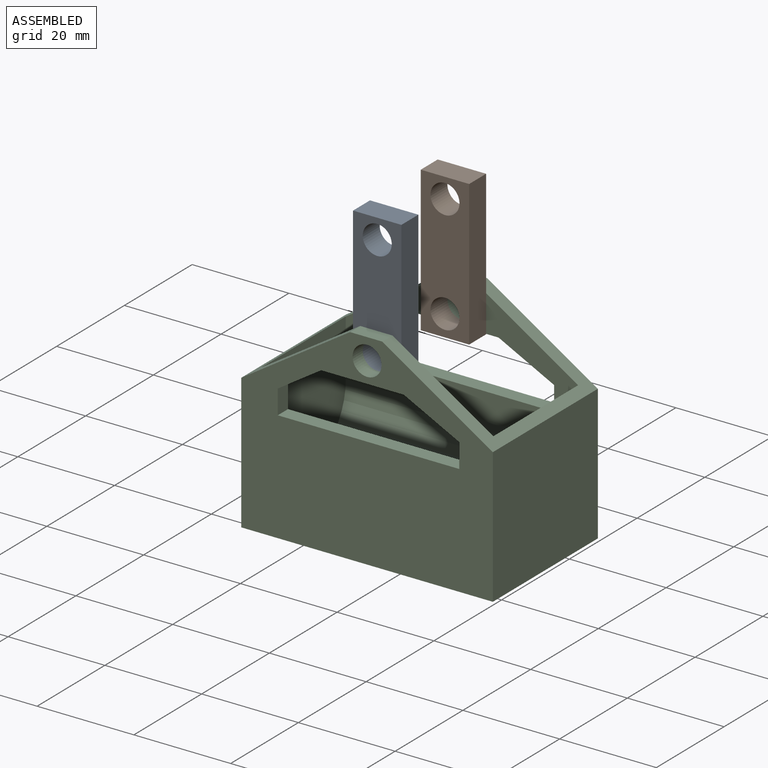
[diagram: assembled view]
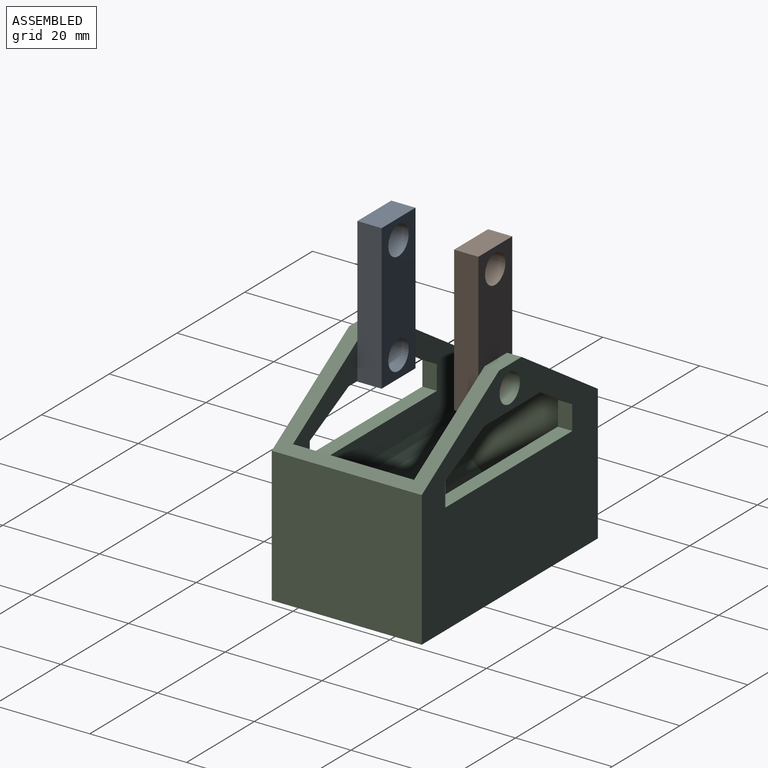
[diagram: assembled view, second angle]
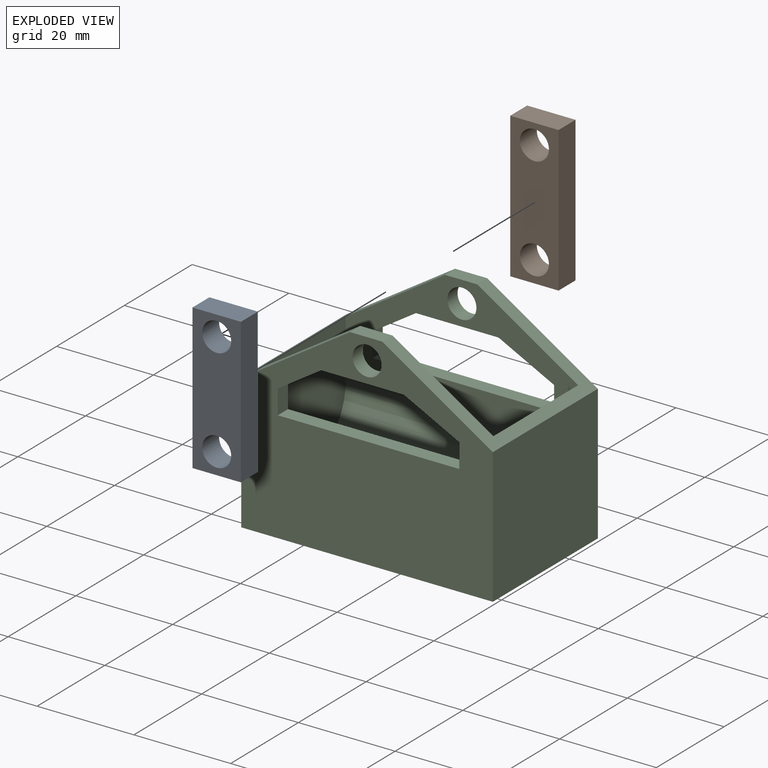
[diagram: exploded view]
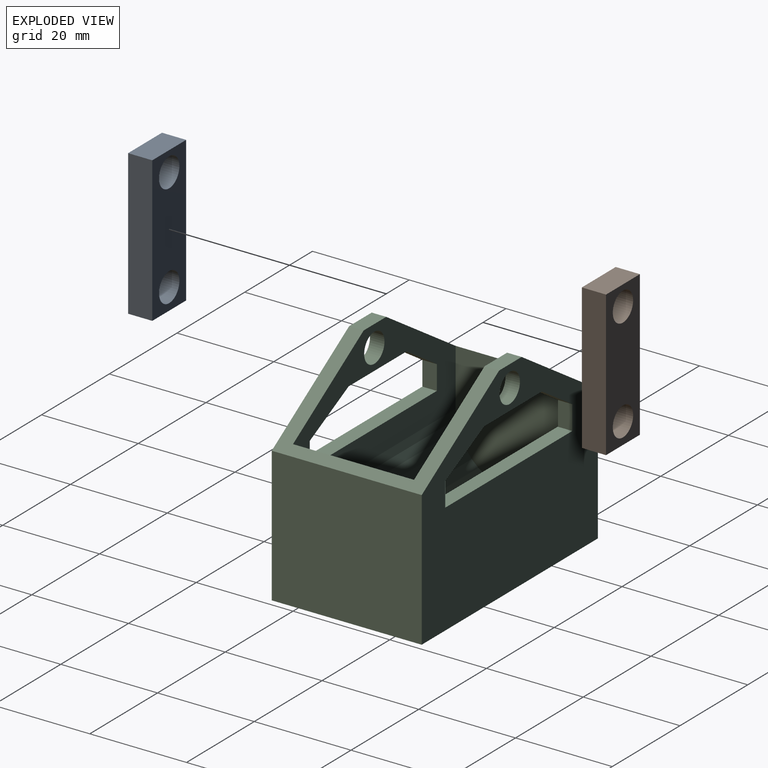
[diagram: exploded view, second angle]
ASSEMBLY  parts=3 mates=2
PART A: 8 faces, bbox 30x10x5 mm
  f0: plane 30x5mm, normal (0,1,0), area 150mm2, adj f1,f5,f6,f7
  f1: plane 10x5mm, normal (-1,0,0), area 50mm2, adj f0,f2,f6,f7
  f2: plane 30x5mm, normal (0,-1,0), area 150mm2, adj f1,f5,f6,f7
  f3: cylinder r=3mm len=6mm, axis (0,0,-1), area 94.2mm2, adj f6,f7
  f4: cylinder r=3mm len=6mm, axis (0,0,-1), area 94.2mm2, adj f6,f7
  f5: plane 10x5mm, normal (1,0,0), area 50mm2, adj f0,f2,f6,f7
  f6: plane 30x10mm, normal (0,0,1), area 243.5mm2, adj f0,f1,f2,f3,f4,f5
  f7: plane 30x10mm, normal (0,0,-1), area 243.5mm2, adj f0,f1,f2,f3,f4,f5
PART B: same geometry as A
PART C: 28 faces, bbox 42.5x31x52 mm
  f0: plane 48x25mm, normal (0,-1,0), area 551.9mm2, adj f5,f6,f8,f9,f10,f11,f13,f14
  f1: plane 48x25mm, normal (0,1,0), area 551.9mm2, adj f5,f6,f12,f14,f15,f16,f17,f18
  f2: plane 52x42.5mm, normal (0,1,0), area 1506.3mm2, adj f3,f4,f5,f6,f7,f8,f9,f10
  f3: plane 31x27.96mm, normal (0,0,-1), area 866.6mm2, adj f2,f5,f7,f21
  f4: plane 31x27.96mm, normal (0,0,1), area 866.6mm2, adj f2,f6,f7,f21
  f5: plane 31x22.85mm, normal (0.84,0,-0.54), area 221.8mm2, adj f0,f1,f2,f3,f12,f13,f16,f21
  f6: plane 31x22.5mm, normal (0.84,0,0.54), area 220.3mm2, adj f0,f1,f2,f4,f12,f13,f15,f21
  f7: plane 52x31mm, normal (-1,0,0), area 1612mm2, adj f2,f3,f4,f21
  f8: plane 8.96x5.79mm, normal (-0.84,0,-0.54), area 32mm2, adj f0,f2,f9,f26
  f9: plane 17.08x3mm, normal (-1,0,0), area 51.2mm2, adj f0,f2,f8,f10
  f10: plane 11.47x5.79mm, normal (-0.89,0,0.45), area 38.5mm2, adj f0,f2,f9,f25
  f11: cylinder r=3mm len=6mm, axis (0,1,0), area 56.5mm2, adj f0,f2
  f12: plane 6.65x3mm, normal (1,0,0), area 19.9mm2, adj f1,f5,f6,f21
  f13: plane 6.65x3mm, normal (1,0,0), area 19.9mm2, adj f0,f2,f5,f6
  f14: cylinder r=12.5mm len=48mm, axis (0,0,1), area 1885mm2, adj f0,f1,f15,f16
  f15: plane 25x24.25mm, normal (0,0,-1), area 539.2mm2, adj f0,f1,f6,f14
  f16: plane 25x24.23mm, normal (0,0,1), area 538.7mm2, adj f0,f1,f5,f14
  f17: plane 11.47x5.79mm, normal (-0.89,0,0.45), area 38.5mm2, adj f1,f18,f21,f22
  f18: plane 17.08x3mm, normal (-1,0,0), area 51.2mm2, adj f1,f17,f19,f21
  f19: plane 8.96x5.79mm, normal (-0.84,0,-0.54), area 32mm2, adj f1,f18,f21,f23
  f20: cylinder r=3mm len=6mm, axis (0,1,0), area 56.5mm2, adj f1,f21
  f21: plane 52x42.5mm, normal (0,-1,0), area 1506.3mm2, adj f3,f4,f5,f6,f7,f12,f17,f18
  f22: plane 5x3mm, normal (0,0,1), area 15mm2, adj f1,f17,f21,f24
  f23: plane 5x3mm, normal (0,0,-1), area 15mm2, adj f1,f19,f21,f24
  f24: plane 37.51x3mm, normal (1,0,0), area 112.5mm2, adj f1,f21,f22,f23
  f25: plane 5x3mm, normal (0,0,1), area 15mm2, adj f0,f2,f10,f27
  f26: plane 5x3mm, normal (0,0,-1), area 15mm2, adj f0,f2,f8,f27
  f27: plane 37.51x3mm, normal (1,0,0), area 112.5mm2, adj f0,f2,f25,f26
PLACE A rot(axis=(-0.58,-0.58,-0.58),120deg) t=(-20.15,-20.79,57.96)mm
PLACE B rot(axis=(-0.58,-0.58,-0.58),120deg) t=(-20.15,-0.79,57.96)mm
PLACE C rot(axis=(0,-1,0),90deg) t=(0.85,0,34.9)mm
MATE revolute A.f3 <-> C.f11  axis (0,-1,0) through (-25.15,-20.79,37.96)mm
MATE revolute B.f3 <-> C.f11  axis (0,1,0) through (-25.15,4.21,37.96)mm
